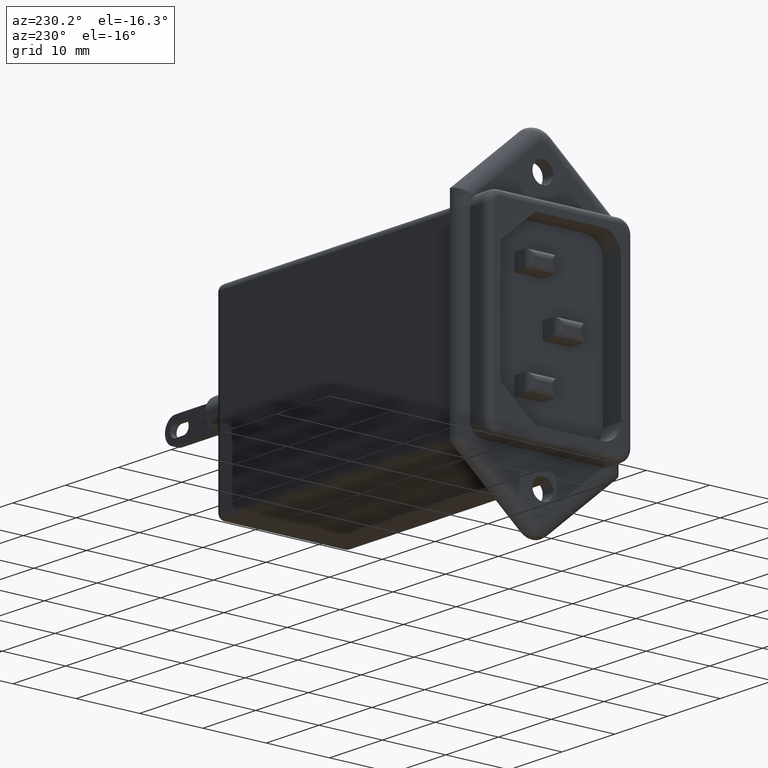
[diagram: clean part render]
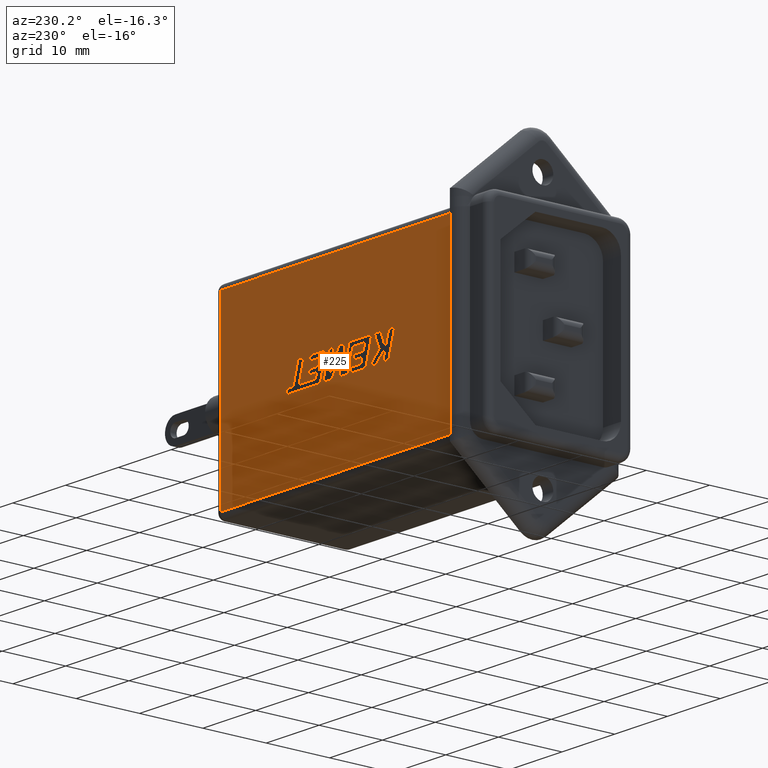
[diagram: same view with one face highlighted and labeled with its STEP entity id]
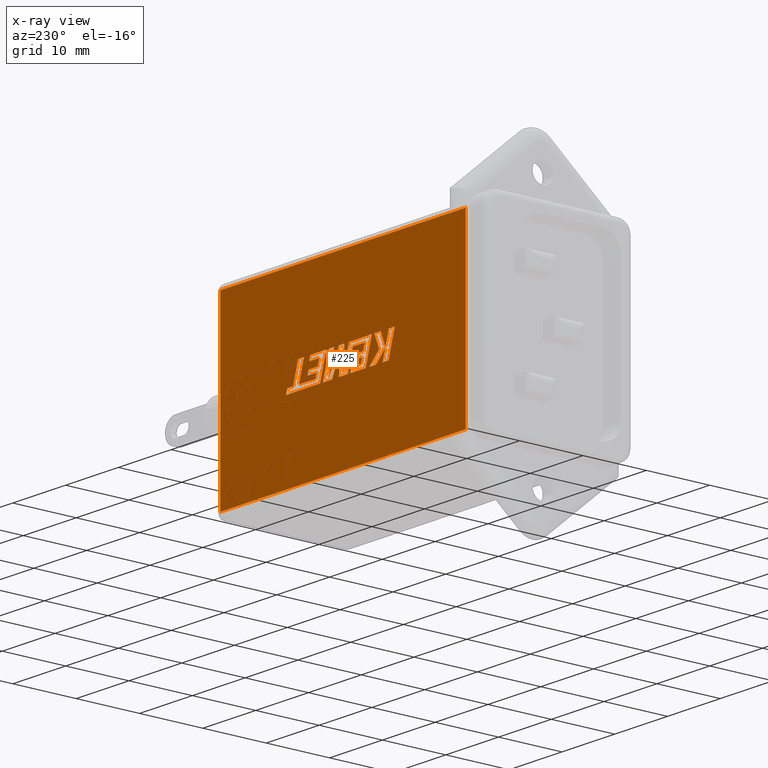
[diagram: x-ray of the same camera — body ghosted, the highlighted face saturated]
A machine part, auxiliary view. The second image highlights one B-rep face of the part: STEP entity #225.
The next image is the same camera in x-ray: the body ghosted, the highlighted face saturated — about 0% of this face is hidden behind the body in this view.
In plain terms, the highlighted planar face has unit normal (0, -1, 0).
Its self-contained STEP definition (entity closure, byte-faithful):
#1 = VECTOR ( 'NONE', #7885, 1000.000000000000000 ) ;
#7 = CARTESIAN_POINT ( 'NONE',  ( 26.56984134590374000, -1.000000000000000700, 15.74541171197180500 ) ) ;
#15 = LINE ( 'NONE', #1508, #1580 ) ;
#43 = CARTESIAN_POINT ( 'NONE',  ( 37.18299102013956800, -1.000000000000000900, 17.51474406947193800 ) ) ;
#55 = CARTESIAN_POINT ( 'NONE',  ( 26.78275954783693900, -1.000000000000000400, 14.99997731377943400 ) ) ;
#63 = EDGE_CURVE ( 'NONE', #7418, #5342, #3511, .T. ) ;
#77 = DIRECTION ( 'NONE',  ( -0.0000000000000000000, 6.505213034913026600E-017, 1.000000000000000000 ) ) ;
#81 = DIRECTION ( 'NONE',  ( -1.000000000000000000, 0.0000000000000000000, 0.0000000000000000000 ) ) ;
#99 = VECTOR ( 'NONE', #4613, 1000.000000000000000 ) ;
#100 = VERTEX_POINT ( 'NONE', #6250 ) ;
#101 = CARTESIAN_POINT ( 'NONE',  ( 36.96982760549467900, -1.000000000000000200, 14.26100427067974000 ) ) ;
#116 = ORIENTED_EDGE ( 'NONE', *, *, #7791, .F. ) ;
#153 = ORIENTED_EDGE ( 'NONE', *, *, #2103, .F. ) ;
#159 = ORIENTED_EDGE ( 'NONE', *, *, #2146, .F. ) ;
#164 = LINE ( 'NONE', #4118, #3308 ) ;
#165 = DIRECTION ( 'NONE',  ( 0.9999999968487352000, 0.0000000000000000000, 7.938847109813145800E-005 ) ) ;
#177 = LINE ( 'NONE', #3982, #2887 ) ;
#213 = LINE ( 'NONE', #8405, #1491 ) ;
#225 = ADVANCED_FACE ( 'NONE', ( #2287, #6430, #6035, #3838 ), #4401, .F. ) ;
#227 = VECTOR ( 'NONE', #4570, 1000.000000000000200 ) ;
#245 = VECTOR ( 'NONE', #6400, 1000.000000000000000 ) ;
#295 = VERTEX_POINT ( 'NONE', #5831 ) ;
#304 = DIRECTION ( 'NONE',  ( 0.2732148821746317500, 0.0000000000000000000, -0.9619530280415473600 ) ) ;
#312 = VERTEX_POINT ( 'NONE', #6690 ) ;
#333 = CARTESIAN_POINT ( 'NONE',  ( 29.44485265852247500, -1.000000000000000200, 13.48244163445169400 ) ) ;
#339 = EDGE_CURVE ( 'NONE', #8191, #1300, #164, .T. ) ;
#398 = CARTESIAN_POINT ( 'NONE',  ( 22.73630203852519200, -0.9999999999999963400, 17.51474406947194100 ) ) ;
#433 = CARTESIAN_POINT ( 'NONE',  ( 32.48706940985875500, -1.000000000000000200, 13.48244163445169400 ) ) ;
#466 = VERTEX_POINT ( 'NONE', #4798 ) ;
#488 = CARTESIAN_POINT ( 'NONE',  ( 20.67048298847099700, -1.000000000000000400, 15.20197128916388600 ) ) ;
#530 = LINE ( 'NONE', #7033, #7976 ) ;
#542 = CARTESIAN_POINT ( 'NONE',  ( 51.89999999999999900, -0.9999999999999974500, 0.4999999999999997800 ) ) ;
#560 = CARTESIAN_POINT ( 'NONE',  ( 24.55382499538083600, -0.9999999999999965600, 16.74759608520588100 ) ) ;
#664 = LINE ( 'NONE', #8162, #5765 ) ;
#665 = VERTEX_POINT ( 'NONE', #1118 ) ;
#683 = VECTOR ( 'NONE', #1250, 1000.000000000000100 ) ;
#698 = EDGE_CURVE ( 'NONE', #1597, #5191, #5042, .T. ) ;
#699 = VERTEX_POINT ( 'NONE', #1860 ) ;
#708 = CARTESIAN_POINT ( 'NONE',  ( 5.400000000000000400, -0.9999999999999954500, 29.50000000000000000 ) ) ;
#747 = CARTESIAN_POINT ( 'NONE',  ( 34.85955148667122900, -0.9999999999999963400, 17.51474406947193800 ) ) ;
#752 = CARTESIAN_POINT ( 'NONE',  ( 21.50940473168675000, -0.9999999999999963400, 17.51474406947193800 ) ) ;
#763 = CARTESIAN_POINT ( 'NONE',  ( 29.44485265852247500, -0.9999999999999965600, 13.48244163445169400 ) ) ;
#768 = ORIENTED_EDGE ( 'NONE', *, *, #2961, .F. ) ;
#769 = ORIENTED_EDGE ( 'NONE', *, *, #6572, .F. ) ;
#774 = ORIENTED_EDGE ( 'NONE', *, *, #3374, .F. ) ;
#780 = CARTESIAN_POINT ( 'NONE',  ( 35.19541934476354300, -0.9999999999999965600, 15.74541171198026000 ) ) ;
#822 = DIRECTION ( 'NONE',  ( 0.2793947940814935400, 2.776039126819028000E-016, -0.9601763114346030200 ) ) ;
#832 = VERTEX_POINT ( 'NONE', #780 ) ;
#890 = CARTESIAN_POINT ( 'NONE',  ( 27.72763770918554000, -0.9999999999999965600, 13.48244163445169400 ) ) ;
#904 = VECTOR ( 'NONE', #8675, 1000.000000000000000 ) ;
#909 = DIRECTION ( 'NONE',  ( 0.4668459304955196500, 1.594839911144553300E-016, -0.8843386665637619200 ) ) ;
#922 = VECTOR ( 'NONE', #81, 1000.000000000000000 ) ;
#944 = VERTEX_POINT ( 'NONE', #3744 ) ;
#972 = LINE ( 'NONE', #5806, #1301 ) ;
#976 = CARTESIAN_POINT ( 'NONE',  ( 33.17915778153050600, -0.9999999999999963400, 16.74744895758621500 ) ) ;
#978 = VECTOR ( 'NONE', #4344, 1000.000000000000000 ) ;
#989 = DIRECTION ( 'NONE',  ( 0.2762033010288912300, 0.0000000000000000000, -0.9610992334305253900 ) ) ;
#1069 = EDGE_CURVE ( 'NONE', #1685, #5430, #2249, .T. ) ;
#1076 = ORIENTED_EDGE ( 'NONE', *, *, #6948, .F. ) ;
#1118 = CARTESIAN_POINT ( 'NONE',  ( 21.16338507036018900, -0.9999999999999965600, 13.48244163445169400 ) ) ;
#1139 = VECTOR ( 'NONE', #5662, 1000.000000000000000 ) ;
#1185 = VECTOR ( 'NONE', #7150, 1000.000000000000000 ) ;
#1201 = DIRECTION ( 'NONE',  ( -0.7059037656364516300, -8.932079804759020800E-017, 0.7083077534943956800 ) ) ;
#1225 = VERTEX_POINT ( 'NONE', #3860 ) ;
#1243 = ORIENTED_EDGE ( 'NONE', *, *, #698, .F. ) ;
#1247 = DIRECTION ( 'NONE',  ( -1.000000000000000000, -0.0000000000000000000, -0.0000000000000000000 ) ) ;
#1250 = DIRECTION ( 'NONE',  ( 0.05375259206908595400, 1.503278995173219700E-016, -0.9985542843760946100 ) ) ;
#1255 = ORIENTED_EDGE ( 'NONE', *, *, #8033, .F. ) ;
#1295 = CARTESIAN_POINT ( 'NONE',  ( 28.56095634181566500, -1.000000000000000200, 13.92489119986050200 ) ) ;
#1300 = VERTEX_POINT ( 'NONE', #708 ) ;
#1301 = VECTOR ( 'NONE', #7193, 1000.000000000000000 ) ;
#1338 = ORIENTED_EDGE ( 'NONE', *, *, #5417, .F. ) ;
#1385 = VECTOR ( 'NONE', #6038, 1000.000000000000100 ) ;
#1400 = CARTESIAN_POINT ( 'NONE',  ( 28.35973478647381500, -1.000000000000000900, 17.51474406947193800 ) ) ;
#1401 = CARTESIAN_POINT ( 'NONE',  ( 23.71116971835575500, -1.000000000000000200, 13.48244163445169400 ) ) ;
#1422 = CARTESIAN_POINT ( 'NONE',  ( 31.81302869413810800, -1.000000000000000900, 17.51474406947193800 ) ) ;
#1429 = CARTESIAN_POINT ( 'NONE',  ( 20.01525008813231200, -1.000000000000000200, 13.48244163445169400 ) ) ;
#1453 = VECTOR ( 'NONE', #2073, 1000.000000000000200 ) ;
#1458 = VERTEX_POINT ( 'NONE', #5481 ) ;
#1476 = EDGE_CURVE ( 'NONE', #3445, #1225, #664, .T. ) ;
#1478 = DIRECTION ( 'NONE',  ( 0.2755520632520631600, 1.212225131878876600E-016, -0.9612861490927302500 ) ) ;
#1491 = VECTOR ( 'NONE', #4382, 1000.000000000000000 ) ;
#1508 = CARTESIAN_POINT ( 'NONE',  ( 21.16338507036018900, -1.000000000000000200, 13.48244163445169400 ) ) ;
#1510 = ORIENTED_EDGE ( 'NONE', *, *, #8382, .F. ) ;
#1534 = EDGE_CURVE ( 'NONE', #2992, #3326, #4500, .T. ) ;
#1557 = CARTESIAN_POINT ( 'NONE',  ( 39.22221499509829800, -1.000000000000000200, 14.26109191613328700 ) ) ;
#1568 = VECTOR ( 'NONE', #304, 1000.000000000000200 ) ;
#1580 = VECTOR ( 'NONE', #1478, 1000.000000000000100 ) ;
#1585 = LINE ( 'NONE', #5188, #227 ) ;
#1597 = VERTEX_POINT ( 'NONE', #3523 ) ;
#1616 = ORIENTED_EDGE ( 'NONE', *, *, #3820, .F. ) ;
#1647 = ORIENTED_EDGE ( 'NONE', *, *, #2562, .F. ) ;
#1658 = ORIENTED_EDGE ( 'NONE', *, *, #3062, .F. ) ;
#1680 = CARTESIAN_POINT ( 'NONE',  ( 26.56984134590374000, -0.9999999999999963400, 15.74541171197180800 ) ) ;
#1684 = VECTOR ( 'NONE', #7443, 1000.000000000000000 ) ;
#1685 = VERTEX_POINT ( 'NONE', #976 ) ;
#1734 = EDGE_CURVE ( 'NONE', #5360, #7781, #2417, .T. ) ;
#1739 = DIRECTION ( 'NONE',  ( 0.0000000000000000000, -1.000000000000000000, 6.505213034913026600E-017 ) ) ;
#1758 = CARTESIAN_POINT ( 'NONE',  ( 31.33893442763127600, -0.9999999999999965600, 13.90760370333975100 ) ) ;
#1803 = VERTEX_POINT ( 'NONE', #3058 ) ;
#1808 = VECTOR ( 'NONE', #165, 1000.000000000000100 ) ;
#1823 = VECTOR ( 'NONE', #989, 1000.000000000000100 ) ;
#1825 = CARTESIAN_POINT ( 'NONE',  ( 26.78911055718822400, -1.000000000000000900, 16.74759608520587800 ) ) ;
#1845 = VERTEX_POINT ( 'NONE', #7830 ) ;
#1860 = CARTESIAN_POINT ( 'NONE',  ( 26.78275954783693900, -0.9999999999999965600, 14.99997731377943400 ) ) ;
#1872 = VECTOR ( 'NONE', #5092, 1000.000000000000000 ) ;
#1875 = CARTESIAN_POINT ( 'NONE',  ( 31.32775272774920700, -1.000000000000000900, 17.51474406947193800 ) ) ;
#1892 = CARTESIAN_POINT ( 'NONE',  ( 39.22221499509829800, -0.9999999999999963400, 14.26109191613328700 ) ) ;
#1999 = ORIENTED_EDGE ( 'NONE', *, *, #3970, .F. ) ;
#2008 = LINE ( 'NONE', #488, #5106 ) ;
#2019 = CARTESIAN_POINT ( 'NONE',  ( 21.50940473168675000, -1.000000000000000900, 17.51474406947193800 ) ) ;
#2073 = DIRECTION ( 'NONE',  ( -0.2763173343569911300, -1.921463428683873400E-016, 0.9610664548998922900 ) ) ;
#2089 = ORIENTED_EDGE ( 'NONE', *, *, #4376, .T. ) ;
#2103 = EDGE_CURVE ( 'NONE', #5651, #6822, #3440, .T. ) ;
#2146 = EDGE_CURVE ( 'NONE', #3016, #6794, #2714, .T. ) ;
#2177 = CARTESIAN_POINT ( 'NONE',  ( 18.85643609209156700, -0.9999999999999963400, 17.51474406947193800 ) ) ;
#2201 = DIRECTION ( 'NONE',  ( 1.000000000000000000, -0.0000000000000000000, -0.0000000000000000000 ) ) ;
#2202 = LINE ( 'NONE', #7, #5532 ) ;
#2208 = CARTESIAN_POINT ( 'NONE',  ( 28.35973478647381500, -0.9999999999999963400, 17.51474406947193800 ) ) ;
#2212 = EDGE_CURVE ( 'NONE', #699, #3445, #2305, .T. ) ;
#2249 = LINE ( 'NONE', #2883, #5270 ) ;
#2252 = VERTEX_POINT ( 'NONE', #763 ) ;
#2275 = VERTEX_POINT ( 'NONE', #2177 ) ;
#2282 = CARTESIAN_POINT ( 'NONE',  ( 23.18617558592954400, -0.9999999999999963400, 17.51474406947193800 ) ) ;
#2285 = ORIENTED_EDGE ( 'NONE', *, *, #8270, .T. ) ;
#2287 = FACE_BOUND ( 'NONE', #6410, .T. ) ;
#2296 = CARTESIAN_POINT ( 'NONE',  ( 24.34650990405160800, -1.000000000000000200, 13.48244163445169400 ) ) ;
#2297 = CARTESIAN_POINT ( 'NONE',  ( 25.05204819322510400, -0.9999999999999965600, 14.99997731377943400 ) ) ;
#2305 = LINE ( 'NONE', #55, #922 ) ;
#2310 = ORIENTED_EDGE ( 'NONE', *, *, #7350, .F. ) ;
#2314 = VECTOR ( 'NONE', #3794, 1000.000000000000200 ) ;
#2319 = LINE ( 'NONE', #5856, #5542 ) ;
#2331 = EDGE_CURVE ( 'NONE', #4182, #5651, #177, .T. ) ;
#2338 = LINE ( 'NONE', #4589, #1385 ) ;
#2367 = ORIENTED_EDGE ( 'NONE', *, *, #63, .F. ) ;
#2383 = CARTESIAN_POINT ( 'NONE',  ( 52.90000000000000600, -0.9999999999999954500, 30.50000000000000000 ) ) ;
#2394 = VERTEX_POINT ( 'NONE', #2604 ) ;
#2414 = LINE ( 'NONE', #3893, #99 ) ;
#2417 = LINE ( 'NONE', #6969, #1568 ) ;
#2427 = LINE ( 'NONE', #3514, #7118 ) ;
#2445 = ORIENTED_EDGE ( 'NONE', *, *, #4756, .F. ) ;
#2529 = VECTOR ( 'NONE', #2598, 1000.000000000000100 ) ;
#2533 = CARTESIAN_POINT ( 'NONE',  ( 29.28978183724404600, -1.000000000000000700, 16.36317030275992200 ) ) ;
#2534 = CARTESIAN_POINT ( 'NONE',  ( 21.82876977394319300, -0.9999999999999965600, 15.32531328569140600 ) ) ;
#2562 = EDGE_CURVE ( 'NONE', #4671, #1458, #6552, .T. ) ;
#2565 = VERTEX_POINT ( 'NONE', #5918 ) ;
#2598 = DIRECTION ( 'NONE',  ( 0.2762437428917332600, 1.921505724587718100E-016, -0.9610876102172818400 ) ) ;
#2604 = CARTESIAN_POINT ( 'NONE',  ( 30.71852898666306300, -0.9999999999999965600, 13.48244163445169400 ) ) ;
#2663 = CARTESIAN_POINT ( 'NONE',  ( 35.74396019206828600, -1.000000000000000200, 14.25530307501568900 ) ) ;
#2676 = VERTEX_POINT ( 'NONE', #560 ) ;
#2714 = LINE ( 'NONE', #6506, #1872 ) ;
#2715 = CARTESIAN_POINT ( 'NONE',  ( 30.71852898666306000, -1.000000000000000200, 13.48244163445169400 ) ) ;
#2729 = ORIENTED_EDGE ( 'NONE', *, *, #6926, .F. ) ;
#2743 = DIRECTION ( 'NONE',  ( 0.2759782365590796000, 1.741735958966986600E-016, -0.9611638845408938500 ) ) ;
#2749 = AXIS2_PLACEMENT_3D ( 'NONE', #2383, #1739, #6406 ) ;
#2754 = LINE ( 'NONE', #8190, #5462 ) ;
#2799 = ORIENTED_EDGE ( 'NONE', *, *, #7479, .F. ) ;
#2883 = CARTESIAN_POINT ( 'NONE',  ( 33.17915778153050600, -1.000000000000000900, 16.74744895758621200 ) ) ;
#2887 = VECTOR ( 'NONE', #3219, 1000.000000000000000 ) ;
#2892 = VERTEX_POINT ( 'NONE', #398 ) ;
#2907 = EDGE_CURVE ( 'NONE', #6666, #1685, #5852, .T. ) ;
#2929 = CARTESIAN_POINT ( 'NONE',  ( 38.11820780043724000, -1.000000000000000200, 14.26100427068974600 ) ) ;
#2958 = LINE ( 'NONE', #4415, #245 ) ;
#2961 = EDGE_CURVE ( 'NONE', #1458, #466, #2008, .T. ) ;
#2987 = VERTEX_POINT ( 'NONE', #2534 ) ;
#2992 = VERTEX_POINT ( 'NONE', #3152 ) ;
#3000 = VERTEX_POINT ( 'NONE', #1892 ) ;
#3016 = VERTEX_POINT ( 'NONE', #5981 ) ;
#3058 = CARTESIAN_POINT ( 'NONE',  ( 24.34650990405160400, -0.9999999999999965600, 13.48244163445169600 ) ) ;
#3062 = EDGE_CURVE ( 'NONE', #2892, #2987, #2319, .T. ) ;
#3063 = CARTESIAN_POINT ( 'NONE',  ( 5.400000000000000400, -0.9999999999999974500, 1.500000000000001300 ) ) ;
#3133 = DIRECTION ( 'NONE',  ( 0.9999891854650020400, 0.0000000000000000000, 0.004650693823678771900 ) ) ;
#3152 = CARTESIAN_POINT ( 'NONE',  ( 28.56095634181566500, -0.9999999999999965600, 13.92489119986050200 ) ) ;
#3217 = CARTESIAN_POINT ( 'NONE',  ( 33.46522293685664800, -0.9999999999999963400, 15.74541171198025700 ) ) ;
#3219 = DIRECTION ( 'NONE',  ( 1.000000000000000000, 0.0000000000000000000, 0.0000000000000000000 ) ) ;
#3227 = CARTESIAN_POINT ( 'NONE',  ( 33.67789592606838800, -0.9999999999999965600, 15.00011218078038800 ) ) ;
#3247 = EDGE_CURVE ( 'NONE', #1225, #5360, #972, .T. ) ;
#3251 = EDGE_CURVE ( 'NONE', #5711, #2892, #8319, .T. ) ;
#3280 = ORIENTED_EDGE ( 'NONE', *, *, #2212, .F. ) ;
#3308 = VECTOR ( 'NONE', #77, 1000.000000000000000 ) ;
#3326 = VERTEX_POINT ( 'NONE', #2208 ) ;
#3374 = EDGE_CURVE ( 'NONE', #6794, #312, #2754, .T. ) ;
#3376 = ORIENTED_EDGE ( 'NONE', *, *, #7754, .F. ) ;
#3409 = DIRECTION ( 'NONE',  ( -0.4443210308329533800, -1.348688820428385800E-016, 0.8958676361826793900 ) ) ;
#3440 = LINE ( 'NONE', #1875, #2314 ) ;
#3445 = VERTEX_POINT ( 'NONE', #2297 ) ;
#3463 = LINE ( 'NONE', #43, #2529 ) ;
#3473 = ORIENTED_EDGE ( 'NONE', *, *, #2907, .F. ) ;
#3511 = LINE ( 'NONE', #4099, #4054 ) ;
#3514 = CARTESIAN_POINT ( 'NONE',  ( 35.96627004428308500, -1.000000000000000200, 13.48244163445169400 ) ) ;
#3523 = CARTESIAN_POINT ( 'NONE',  ( 32.97286032619144400, -0.9999999999999965600, 13.48244163445169400 ) ) ;
#3533 = LINE ( 'NONE', #2715, #4459 ) ;
#3536 = ORIENTED_EDGE ( 'NONE', *, *, #6554, .F. ) ;
#3581 = DIRECTION ( 'NONE',  ( 0.2755265765475178900, 1.904123134576557900E-016, -0.9612934544747534500 ) ) ;
#3624 = ORIENTED_EDGE ( 'NONE', *, *, #4391, .F. ) ;
#3634 = DIRECTION ( 'NONE',  ( -0.2762517575166432700, -1.914783743965722900E-016, 0.9610853065513829100 ) ) ;
#3666 = LINE ( 'NONE', #2663, #4096 ) ;
#3669 = VECTOR ( 'NONE', #8632, 1000.000000000000100 ) ;
#3744 = CARTESIAN_POINT ( 'NONE',  ( 20.01525008813231200, -1.000000000000000200, 13.48244163445169400 ) ) ;
#3765 = CARTESIAN_POINT ( 'NONE',  ( 35.07727585784675000, -1.000000000000000900, 16.74744895758621200 ) ) ;
#3794 = DIRECTION ( 'NONE',  ( 0.2763139702539126300, 1.550466122641776200E-016, -0.9610674221107069500 ) ) ;
#3820 = EDGE_CURVE ( 'NONE', #2565, #8246, #3666, .T. ) ;
#3838 = FACE_BOUND ( 'NONE', #4210, .T. ) ;
#3843 = ORIENTED_EDGE ( 'NONE', *, *, #4470, .F. ) ;
#3860 = CARTESIAN_POINT ( 'NONE',  ( 25.27028751111107900, -0.9999999999999965600, 14.24996969842105400 ) ) ;
#3893 = CARTESIAN_POINT ( 'NONE',  ( 32.48706940985875500, -1.000000000000000200, 13.48244163445169400 ) ) ;
#3899 = ORIENTED_EDGE ( 'NONE', *, *, #5259, .F. ) ;
#3911 = VECTOR ( 'NONE', #3581, 1000.000000000000200 ) ;
#3970 = EDGE_CURVE ( 'NONE', #7781, #1803, #213, .T. ) ;
#3982 = CARTESIAN_POINT ( 'NONE',  ( 30.30308234839002800, -1.000000000000000900, 17.51474406947193800 ) ) ;
#4038 = CARTESIAN_POINT ( 'NONE',  ( 31.32775272774920700, -0.9999999999999963400, 17.51474406947194100 ) ) ;
#4054 = VECTOR ( 'NONE', #909, 1000.000000000000200 ) ;
#4067 = CARTESIAN_POINT ( 'NONE',  ( 38.11820780043724000, -0.9999999999999965600, 14.26100427068974800 ) ) ;
#4090 = EDGE_CURVE ( 'NONE', #1300, #1845, #5349, .T. ) ;
#4096 = VECTOR ( 'NONE', #3133, 1000.000000000000100 ) ;
#4099 = CARTESIAN_POINT ( 'NONE',  ( 29.43471055466833500, -1.000000000000000900, 17.51474406947193800 ) ) ;
#4118 = CARTESIAN_POINT ( 'NONE',  ( 5.400000000000000400, -0.9999999999999954500, 30.50000000000000000 ) ) ;
#4135 = LINE ( 'NONE', #4801, #8633 ) ;
#4144 = DIRECTION ( 'NONE',  ( 0.7145695586381851600, 8.231384304564458500E-017, -0.6995643972270381200 ) ) ;
#4148 = DIRECTION ( 'NONE',  ( 0.2793947940878294100, 2.776039126821608500E-016, -0.9601763114327593900 ) ) ;
#4158 = VECTOR ( 'NONE', #1247, 1000.000000000000000 ) ;
#4167 = VECTOR ( 'NONE', #6688, 1000.000000000000100 ) ;
#4182 = VERTEX_POINT ( 'NONE', #5196 ) ;
#4188 = LINE ( 'NONE', #4487, #1 ) ;
#4206 = DIRECTION ( 'NONE',  ( 0.2740217765954066100, 2.080860013522332200E-016, -0.9617234872620595800 ) ) ;
#4210 = EDGE_LOOP ( 'NONE', ( #2729, #774, #159, #4234, #4466, #6704, #3473, #3376, #5946, #1243, #5591, #3899, #7412, #1076, #8222, #5209, #1616 ) ) ;
#4234 = ORIENTED_EDGE ( 'NONE', *, *, #4983, .F. ) ;
#4246 = LINE ( 'NONE', #6303, #4853 ) ;
#4259 = VECTOR ( 'NONE', #6993, 1000.000000000000000 ) ;
#4267 = LINE ( 'NONE', #1401, #7622 ) ;
#4280 = VERTEX_POINT ( 'NONE', #1680 ) ;
#4306 = ORIENTED_EDGE ( 'NONE', *, *, #1476, .F. ) ;
#4333 = VECTOR ( 'NONE', #8653, 1000.000000000000000 ) ;
#4344 = DIRECTION ( 'NONE',  ( 1.000000000000000000, 0.0000000000000000000, 0.0000000000000000000 ) ) ;
#4355 = DIRECTION ( 'NONE',  ( -1.000000000000000000, 0.0000000000000000000, 0.0000000000000000000 ) ) ;
#4376 = EDGE_CURVE ( 'NONE', #8565, #8191, #8253, .T. ) ;
#4382 = DIRECTION ( 'NONE',  ( -1.000000000000000000, 0.0000000000000000000, 0.0000000000000000000 ) ) ;
#4391 = EDGE_CURVE ( 'NONE', #295, #5711, #4874, .T. ) ;
#4401 = PLANE ( 'NONE',  #2749 ) ;
#4415 = CARTESIAN_POINT ( 'NONE',  ( 33.46522293685664800, -1.000000000000000700, 15.74541171198025700 ) ) ;
#4416 = ORIENTED_EDGE ( 'NONE', *, *, #3251, .F. ) ;
#4417 = VERTEX_POINT ( 'NONE', #5343 ) ;
#4418 = LINE ( 'NONE', #2533, #683 ) ;
#4425 = EDGE_CURVE ( 'NONE', #8246, #4987, #8153, .T. ) ;
#4427 = VECTOR ( 'NONE', #7247, 1000.000000000000000 ) ;
#4437 = VERTEX_POINT ( 'NONE', #4067 ) ;
#4459 = VECTOR ( 'NONE', #3409, 1000.000000000000100 ) ;
#4466 = ORIENTED_EDGE ( 'NONE', *, *, #5327, .F. ) ;
#4470 = EDGE_CURVE ( 'NONE', #665, #944, #5728, .T. ) ;
#4485 = EDGE_CURVE ( 'NONE', #2394, #6840, #3533, .T. ) ;
#4487 = CARTESIAN_POINT ( 'NONE',  ( 20.00303849160227200, -1.000000000000000900, 17.51474406947193800 ) ) ;
#4500 = LINE ( 'NONE', #1295, #3669 ) ;
#4532 = LINE ( 'NONE', #1400, #4333 ) ;
#4541 = EDGE_CURVE ( 'NONE', #2987, #4671, #4267, .T. ) ;
#4570 = DIRECTION ( 'NONE',  ( -0.2760118818968548800, -1.733371132702163300E-016, 0.9611542233438692400 ) ) ;
#4574 = VECTOR ( 'NONE', #6767, 1000.000000000000000 ) ;
#4589 = CARTESIAN_POINT ( 'NONE',  ( 33.89613524394961500, -1.000000000000000200, 14.25010456541987300 ) ) ;
#4613 = DIRECTION ( 'NONE',  ( -1.000000000000000000, 0.0000000000000000000, 0.0000000000000000000 ) ) ;
#4644 = VERTEX_POINT ( 'NONE', #7023 ) ;
#4647 = LINE ( 'NONE', #2296, #8230 ) ;
#4671 = VERTEX_POINT ( 'NONE', #8389 ) ;
#4720 = EDGE_CURVE ( 'NONE', #5912, #6924, #7937, .T. ) ;
#4723 = DIRECTION ( 'NONE',  ( 0.2746459304916881200, 2.797052687837504500E-016, -0.9615454294334484500 ) ) ;
#4756 = EDGE_CURVE ( 'NONE', #5849, #100, #6548, .T. ) ;
#4789 = DIRECTION ( 'NONE',  ( -1.000000000000000000, 0.0000000000000000000, 0.0000000000000000000 ) ) ;
#4798 = CARTESIAN_POINT ( 'NONE',  ( 20.67048298847099000, -0.9999999999999965600, 15.20197128916388600 ) ) ;
#4801 = CARTESIAN_POINT ( 'NONE',  ( 27.53020468708080100, -1.000000000000000900, 17.51474406947193800 ) ) ;
#4831 = DIRECTION ( 'NONE',  ( -0.2765379750249953900, -1.550362177249515900E-016, 0.9610029908221279200 ) ) ;
#4846 = LINE ( 'NONE', #542, #6018 ) ;
#4853 = VECTOR ( 'NONE', #4206, 1000.000000000000100 ) ;
#4874 = LINE ( 'NONE', #2019, #4167 ) ;
#4881 = CARTESIAN_POINT ( 'NONE',  ( 20.63057461559720500, -1.000000000000000400, 15.32531328569145900 ) ) ;
#4955 = VECTOR ( 'NONE', #6525, 1000.000000000000200 ) ;
#4971 = CARTESIAN_POINT ( 'NONE',  ( 27.10744570605124100, -0.9999999999999963400, 14.24996969842105300 ) ) ;
#4983 = EDGE_CURVE ( 'NONE', #832, #3016, #8035, .T. ) ;
#4987 = VERTEX_POINT ( 'NONE', #5381 ) ;
#5042 = LINE ( 'NONE', #7867, #4955 ) ;
#5092 = DIRECTION ( 'NONE',  ( -1.000000000000000000, 0.0000000000000000000, 0.0000000000000000000 ) ) ;
#5106 = VECTOR ( 'NONE', #1201, 1000.000000000000100 ) ;
#5155 = VERTEX_POINT ( 'NONE', #747 ) ;
#5156 = LINE ( 'NONE', #6998, #978 ) ;
#5188 = CARTESIAN_POINT ( 'NONE',  ( 31.33893442763127600, -1.000000000000000200, 13.90760370333975100 ) ) ;
#5191 = VERTEX_POINT ( 'NONE', #5527 ) ;
#5196 = CARTESIAN_POINT ( 'NONE',  ( 30.30308234839002800, -0.9999999999999963400, 17.51474406947193800 ) ) ;
#5209 = ORIENTED_EDGE ( 'NONE', *, *, #4425, .F. ) ;
#5225 = CARTESIAN_POINT ( 'NONE',  ( 52.90000000000000600, -0.9999999999999974500, 1.500000000000001300 ) ) ;
#5252 = DIRECTION ( 'NONE',  ( -0.0000000000000000000, -6.505213034913026600E-017, -1.000000000000000000 ) ) ;
#5255 = DIRECTION ( 'NONE',  ( -1.000000000000000000, 0.0000000000000000000, 0.0000000000000000000 ) ) ;
#5259 = EDGE_CURVE ( 'NONE', #3000, #4644, #7162, .T. ) ;
#5270 = VECTOR ( 'NONE', #7581, 999.9999999999998900 ) ;
#5287 = EDGE_CURVE ( 'NONE', #4987, #4417, #5156, .T. ) ;
#5320 = ORIENTED_EDGE ( 'NONE', *, *, #7743, .F. ) ;
#5327 = EDGE_CURVE ( 'NONE', #5430, #832, #2958, .T. ) ;
#5333 = ORIENTED_EDGE ( 'NONE', *, *, #7338, .F. ) ;
#5342 = VERTEX_POINT ( 'NONE', #1758 ) ;
#5343 = CARTESIAN_POINT ( 'NONE',  ( 37.18299102013956800, -0.9999999999999963400, 17.51474406947194100 ) ) ;
#5349 = LINE ( 'NONE', #7015, #7455 ) ;
#5360 = VERTEX_POINT ( 'NONE', #4971 ) ;
#5381 = CARTESIAN_POINT ( 'NONE',  ( 36.03434109120658500, -0.9999999999999963400, 17.51474406947193800 ) ) ;
#5402 = VECTOR ( 'NONE', #3634, 1000.000000000000100 ) ;
#5417 = EDGE_CURVE ( 'NONE', #944, #2275, #7908, .T. ) ;
#5430 = VERTEX_POINT ( 'NONE', #3217 ) ;
#5462 = VECTOR ( 'NONE', #822, 1000.000000000000100 ) ;
#5481 = CARTESIAN_POINT ( 'NONE',  ( 22.38417658055234900, -0.9999999999999965600, 13.48244163445169400 ) ) ;
#5527 = CARTESIAN_POINT ( 'NONE',  ( 31.81302869413810800, -0.9999999999999963400, 17.51474406947193800 ) ) ;
#5532 = VECTOR ( 'NONE', #4723, 1000.000000000000000 ) ;
#5542 = VECTOR ( 'NONE', #8591, 1000.000000000000100 ) ;
#5548 = ORIENTED_EDGE ( 'NONE', *, *, #4720, .F. ) ;
#5562 = EDGE_CURVE ( 'NONE', #6840, #2252, #4418, .T. ) ;
#5591 = ORIENTED_EDGE ( 'NONE', *, *, #7016, .F. ) ;
#5625 = CARTESIAN_POINT ( 'NONE',  ( 51.89999999999999900, -0.9999999999999974500, 1.500000000000001300 ) ) ;
#5651 = VERTEX_POINT ( 'NONE', #4038 ) ;
#5662 = DIRECTION ( 'NONE',  ( -1.000000000000000000, 0.0000000000000000000, 0.0000000000000000000 ) ) ;
#5690 = ORIENTED_EDGE ( 'NONE', *, *, #6389, .F. ) ;
#5711 = VERTEX_POINT ( 'NONE', #752 ) ;
#5728 = LINE ( 'NONE', #1429, #4574 ) ;
#5765 = VECTOR ( 'NONE', #4148, 1000.000000000000200 ) ;
#5795 = LINE ( 'NONE', #7607, #6950 ) ;
#5806 = CARTESIAN_POINT ( 'NONE',  ( 25.27028751111107900, -1.000000000000000200, 14.24996969842105400 ) ) ;
#5831 = CARTESIAN_POINT ( 'NONE',  ( 20.63057461559720500, -0.9999999999999963400, 15.32531328569145900 ) ) ;
#5849 = VERTEX_POINT ( 'NONE', #890 ) ;
#5852 = LINE ( 'NONE', #3765, #8486 ) ;
#5856 = CARTESIAN_POINT ( 'NONE',  ( 21.82876977394319300, -1.000000000000000400, 15.32531328569140400 ) ) ;
#5895 = LINE ( 'NONE', #4881, #3911 ) ;
#5912 = VERTEX_POINT ( 'NONE', #2282 ) ;
#5918 = CARTESIAN_POINT ( 'NONE',  ( 35.74396019206828600, -0.9999999999999965600, 14.25530307501568700 ) ) ;
#5935 = CARTESIAN_POINT ( 'NONE',  ( 29.43471055466833500, -0.9999999999999963400, 17.51474406947193800 ) ) ;
#5946 = ORIENTED_EDGE ( 'NONE', *, *, #7001, .F. ) ;
#5981 = CARTESIAN_POINT ( 'NONE',  ( 35.40833754669205300, -0.9999999999999965600, 15.00011218078038900 ) ) ;
#6018 = VECTOR ( 'NONE', #5252, 1000.000000000000000 ) ;
#6035 = FACE_BOUND ( 'NONE', #7420, .T. ) ;
#6038 = DIRECTION ( 'NONE',  ( 0.9999960426590095400, 0.0000000000000000000, 0.002813301676023212900 ) ) ;
#6078 = CARTESIAN_POINT ( 'NONE',  ( 24.83937520400845100, -0.9999999999999963400, 15.74541171197180500 ) ) ;
#6101 = VECTOR ( 'NONE', #2201, 1000.000000000000000 ) ;
#6187 = ORIENTED_EDGE ( 'NONE', *, *, #4090, .T. ) ;
#6250 = CARTESIAN_POINT ( 'NONE',  ( 26.78911055718822400, -0.9999999999999963400, 16.74759608520587800 ) ) ;
#6266 = ORIENTED_EDGE ( 'NONE', *, *, #4541, .F. ) ;
#6303 = CARTESIAN_POINT ( 'NONE',  ( 24.55382499538084300, -1.000000000000000900, 16.74759608520587800 ) ) ;
#6305 = CARTESIAN_POINT ( 'NONE',  ( 27.32543981122083900, -0.9999999999999965600, 13.48244163445169400 ) ) ;
#6357 = DIRECTION ( 'NONE',  ( 1.000000000000000000, -0.0000000000000000000, -0.0000000000000000000 ) ) ;
#6389 = EDGE_CURVE ( 'NONE', #6924, #2992, #4135, .T. ) ;
#6395 = VERTEX_POINT ( 'NONE', #6078 ) ;
#6397 = LINE ( 'NONE', #1825, #1185 ) ;
#6400 = DIRECTION ( 'NONE',  ( 1.000000000000000000, 0.0000000000000000000, 0.0000000000000000000 ) ) ;
#6406 = DIRECTION ( 'NONE',  ( 0.0000000000000000000, -6.505213034913026600E-017, -1.000000000000000000 ) ) ;
#6410 = EDGE_LOOP ( 'NONE', ( #2310, #153, #6662, #6650, #2367, #1510, #8113, #5690, #5548, #8527, #1999, #6862, #6905, #4306, #3280, #2799, #116, #1255, #769, #2445, #5320, #6477, #6876 ) ) ;
#6430 = FACE_OUTER_BOUND ( 'NONE', #8061, .T. ) ;
#6477 = ORIENTED_EDGE ( 'NONE', *, *, #5562, .F. ) ;
#6506 = CARTESIAN_POINT ( 'NONE',  ( 35.40833754669205300, -1.000000000000000400, 15.00011218078038900 ) ) ;
#6514 = EDGE_CURVE ( 'NONE', #4437, #3000, #7900, .T. ) ;
#6525 = DIRECTION ( 'NONE',  ( -0.2764273280489777900, -1.550413532390795200E-016, 0.9610348236706631700 ) ) ;
#6548 = LINE ( 'NONE', #7652, #5402 ) ;
#6552 = LINE ( 'NONE', #7926, #4158 ) ;
#6554 = EDGE_CURVE ( 'NONE', #7912, #295, #5895, .T. ) ;
#6572 = EDGE_CURVE ( 'NONE', #100, #2676, #6397, .T. ) ;
#6650 = ORIENTED_EDGE ( 'NONE', *, *, #6785, .F. ) ;
#6662 = ORIENTED_EDGE ( 'NONE', *, *, #2331, .F. ) ;
#6666 = VERTEX_POINT ( 'NONE', #7871 ) ;
#6688 = DIRECTION ( 'NONE',  ( 0.3725077383644791500, -1.838233314076729200E-016, 0.9280290862136707500 ) ) ;
#6690 = CARTESIAN_POINT ( 'NONE',  ( 33.89613524394961500, -1.000000000000000200, 14.25010456541987300 ) ) ;
#6704 = ORIENTED_EDGE ( 'NONE', *, *, #1069, .F. ) ;
#6767 = DIRECTION ( 'NONE',  ( -1.000000000000000000, -0.0000000000000000000, -0.0000000000000000000 ) ) ;
#6785 = EDGE_CURVE ( 'NONE', #5342, #4182, #1585, .T. ) ;
#6794 = VERTEX_POINT ( 'NONE', #3227 ) ;
#6822 = VERTEX_POINT ( 'NONE', #433 ) ;
#6840 = VERTEX_POINT ( 'NONE', #8525 ) ;
#6862 = ORIENTED_EDGE ( 'NONE', *, *, #1734, .F. ) ;
#6876 = ORIENTED_EDGE ( 'NONE', *, *, #4485, .F. ) ;
#6887 = CARTESIAN_POINT ( 'NONE',  ( 22.73630203852519200, -1.000000000000000900, 17.51474406947193800 ) ) ;
#6905 = ORIENTED_EDGE ( 'NONE', *, *, #3247, .F. ) ;
#6924 = VERTEX_POINT ( 'NONE', #8066 ) ;
#6926 = EDGE_CURVE ( 'NONE', #312, #2565, #2338, .T. ) ;
#6948 = EDGE_CURVE ( 'NONE', #4417, #4437, #3463, .T. ) ;
#6950 = VECTOR ( 'NONE', #7721, 1000.000000000000100 ) ;
#6969 = CARTESIAN_POINT ( 'NONE',  ( 27.10744570605123400, -1.000000000000000200, 14.24996969842105400 ) ) ;
#6993 = DIRECTION ( 'NONE',  ( 1.000000000000000000, 0.0000000000000000000, 0.0000000000000000000 ) ) ;
#6998 = CARTESIAN_POINT ( 'NONE',  ( 36.03434109120658500, -1.000000000000000900, 17.51474406947193800 ) ) ;
#7001 = EDGE_CURVE ( 'NONE', #5191, #5155, #7241, .T. ) ;
#7015 = CARTESIAN_POINT ( 'NONE',  ( 52.90000000000000600, -0.9999999999999954500, 29.50000000000000000 ) ) ;
#7016 = EDGE_CURVE ( 'NONE', #4644, #1597, #2427, .T. ) ;
#7023 = CARTESIAN_POINT ( 'NONE',  ( 39.44598562217484500, -0.9999999999999965600, 13.48244163445169400 ) ) ;
#7033 = CARTESIAN_POINT ( 'NONE',  ( 24.83937520400845100, -1.000000000000000700, 15.74541171197180500 ) ) ;
#7118 = VECTOR ( 'NONE', #4789, 1000.000000000000000 ) ;
#7132 = EDGE_CURVE ( 'NONE', #466, #665, #15, .T. ) ;
#7150 = DIRECTION ( 'NONE',  ( -1.000000000000000000, 0.0000000000000000000, 0.0000000000000000000 ) ) ;
#7162 = LINE ( 'NONE', #1557, #1823 ) ;
#7193 = DIRECTION ( 'NONE',  ( 1.000000000000000000, 0.0000000000000000000, 0.0000000000000000000 ) ) ;
#7241 = LINE ( 'NONE', #1422, #1684 ) ;
#7247 = DIRECTION ( 'NONE',  ( -0.2762033010252021900, -1.550517443053023700E-016, 0.9610992334315856500 ) ) ;
#7338 = EDGE_CURVE ( 'NONE', #2275, #7912, #4188, .T. ) ;
#7339 = LINE ( 'NONE', #333, #1139 ) ;
#7350 = EDGE_CURVE ( 'NONE', #6822, #2394, #2414, .T. ) ;
#7412 = ORIENTED_EDGE ( 'NONE', *, *, #6514, .F. ) ;
#7418 = VERTEX_POINT ( 'NONE', #5935 ) ;
#7420 = EDGE_LOOP ( 'NONE', ( #1338, #3843, #7999, #768, #1647, #6266, #1658, #4416, #3624, #3536, #5333 ) ) ;
#7443 = DIRECTION ( 'NONE',  ( 1.000000000000000000, 0.0000000000000000000, 0.0000000000000000000 ) ) ;
#7455 = VECTOR ( 'NONE', #6357, 1000.000000000000000 ) ;
#7479 = EDGE_CURVE ( 'NONE', #4280, #699, #2202, .T. ) ;
#7581 = DIRECTION ( 'NONE',  ( 0.2745159998572682700, 2.080860516464872000E-016, -0.9615825319869140100 ) ) ;
#7607 = CARTESIAN_POINT ( 'NONE',  ( 34.85955148667123600, -1.000000000000000900, 17.51474406947193800 ) ) ;
#7622 = VECTOR ( 'NONE', #4144, 1000.000000000000100 ) ;
#7652 = CARTESIAN_POINT ( 'NONE',  ( 27.72763770918553700, -1.000000000000000200, 13.48244163445169400 ) ) ;
#7710 = CARTESIAN_POINT ( 'NONE',  ( 26.81246706524038400, -1.000000000000000900, 17.51474406947193800 ) ) ;
#7721 = DIRECTION ( 'NONE',  ( 0.2729786930695286000, 0.0000000000000000000, -0.9620200793798703300 ) ) ;
#7743 = EDGE_CURVE ( 'NONE', #2252, #5849, #7339, .T. ) ;
#7754 = EDGE_CURVE ( 'NONE', #5155, #6666, #5795, .T. ) ;
#7781 = VERTEX_POINT ( 'NONE', #6305 ) ;
#7791 = EDGE_CURVE ( 'NONE', #6395, #4280, #530, .T. ) ;
#7804 = ORIENTED_EDGE ( 'NONE', *, *, #339, .T. ) ;
#7830 = CARTESIAN_POINT ( 'NONE',  ( 51.89999999999999900, -0.9999999999999954500, 29.50000000000000000 ) ) ;
#7867 = CARTESIAN_POINT ( 'NONE',  ( 32.97286032619144400, -1.000000000000000200, 13.48244163445169400 ) ) ;
#7871 = CARTESIAN_POINT ( 'NONE',  ( 35.07727585784675000, -0.9999999999999963400, 16.74744895758621200 ) ) ;
#7885 = DIRECTION ( 'NONE',  ( 1.000000000000000000, -0.0000000000000000000, -0.0000000000000000000 ) ) ;
#7900 = LINE ( 'NONE', #2929, #1808 ) ;
#7908 = LINE ( 'NONE', #8504, #4427 ) ;
#7912 = VERTEX_POINT ( 'NONE', #8169 ) ;
#7926 = CARTESIAN_POINT ( 'NONE',  ( 22.38417658055234900, -1.000000000000000200, 13.48244163445169400 ) ) ;
#7937 = LINE ( 'NONE', #7710, #4259 ) ;
#7952 = VECTOR ( 'NONE', #5255, 1000.000000000000000 ) ;
#7954 = CARTESIAN_POINT ( 'NONE',  ( 35.19541934476354300, -1.000000000000000700, 15.74541171198025700 ) ) ;
#7976 = VECTOR ( 'NONE', #8400, 1000.000000000000000 ) ;
#7999 = ORIENTED_EDGE ( 'NONE', *, *, #7132, .F. ) ;
#8033 = EDGE_CURVE ( 'NONE', #2676, #6395, #4246, .T. ) ;
#8035 = LINE ( 'NONE', #7954, #904 ) ;
#8061 = EDGE_LOOP ( 'NONE', ( #2285, #2089, #7804, #6187 ) ) ;
#8066 = CARTESIAN_POINT ( 'NONE',  ( 27.53020468708080100, -0.9999999999999963400, 17.51474406947194100 ) ) ;
#8088 = EDGE_CURVE ( 'NONE', #1803, #5912, #4647, .T. ) ;
#8113 = ORIENTED_EDGE ( 'NONE', *, *, #1534, .F. ) ;
#8153 = LINE ( 'NONE', #101, #1453 ) ;
#8162 = CARTESIAN_POINT ( 'NONE',  ( 25.05204819322510400, -1.000000000000000400, 14.99997731377943400 ) ) ;
#8169 = CARTESIAN_POINT ( 'NONE',  ( 20.00303849160227200, -0.9999999999999963400, 17.51474406947194100 ) ) ;
#8190 = CARTESIAN_POINT ( 'NONE',  ( 33.67789592606838800, -1.000000000000000400, 15.00011218078038900 ) ) ;
#8191 = VERTEX_POINT ( 'NONE', #3063 ) ;
#8222 = ORIENTED_EDGE ( 'NONE', *, *, #5287, .F. ) ;
#8230 = VECTOR ( 'NONE', #4831, 1000.000000000000100 ) ;
#8246 = VERTEX_POINT ( 'NONE', #8397 ) ;
#8253 = LINE ( 'NONE', #5225, #7952 ) ;
#8270 = EDGE_CURVE ( 'NONE', #1845, #8565, #4846, .T. ) ;
#8319 = LINE ( 'NONE', #6887, #6101 ) ;
#8382 = EDGE_CURVE ( 'NONE', #3326, #7418, #4532, .T. ) ;
#8389 = CARTESIAN_POINT ( 'NONE',  ( 23.71116971835575500, -0.9999999999999965600, 13.48244163445169400 ) ) ;
#8397 = CARTESIAN_POINT ( 'NONE',  ( 36.96982760549467900, -0.9999999999999965600, 14.26100427067974000 ) ) ;
#8400 = DIRECTION ( 'NONE',  ( 1.000000000000000000, 0.0000000000000000000, 0.0000000000000000000 ) ) ;
#8405 = CARTESIAN_POINT ( 'NONE',  ( 27.32543981122083900, -1.000000000000000200, 13.48244163445169400 ) ) ;
#8486 = VECTOR ( 'NONE', #4355, 1000.000000000000000 ) ;
#8504 = CARTESIAN_POINT ( 'NONE',  ( 18.85643609209156700, -1.000000000000000900, 17.51474406947193800 ) ) ;
#8525 = CARTESIAN_POINT ( 'NONE',  ( 29.28978183724404600, -0.9999999999999963400, 16.36317030275992600 ) ) ;
#8527 = ORIENTED_EDGE ( 'NONE', *, *, #8088, .F. ) ;
#8565 = VERTEX_POINT ( 'NONE', #5625 ) ;
#8591 = DIRECTION ( 'NONE',  ( -0.3829140317376970000, 1.829824641116910900E-016, -0.9237839814038679700 ) ) ;
#8632 = DIRECTION ( 'NONE',  ( -0.05596501978068496600, -1.809271256044001900E-016, 0.9984327301130244700 ) ) ;
#8633 = VECTOR ( 'NONE', #2743, 1000.000000000000100 ) ;
#8653 = DIRECTION ( 'NONE',  ( 1.000000000000000000, 0.0000000000000000000, 0.0000000000000000000 ) ) ;
#8675 = DIRECTION ( 'NONE',  ( 0.2746918797667246600, 2.797520645108678100E-016, -0.9615323037684294600 ) ) ;